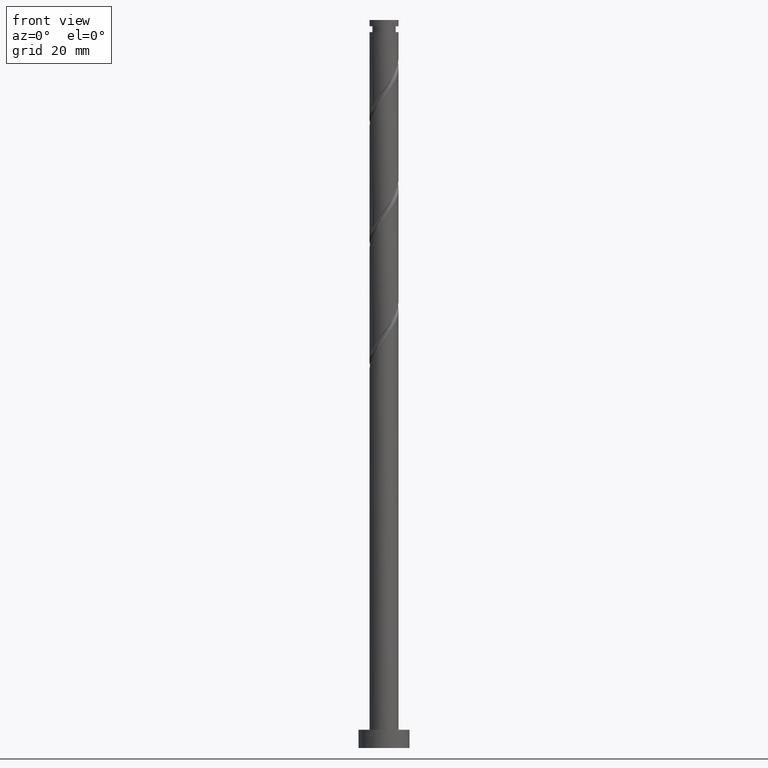
[diagram: clean part render]
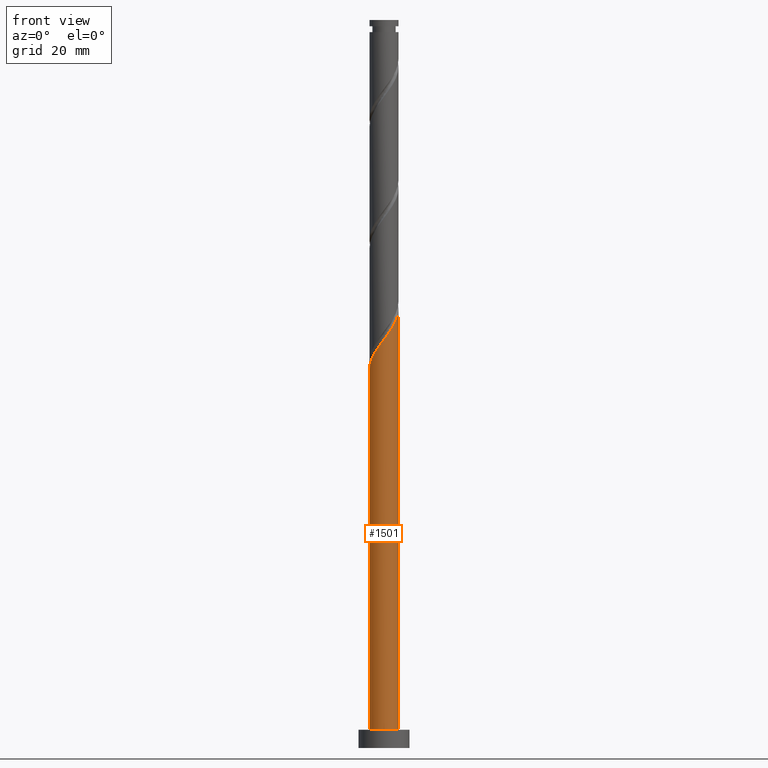
[diagram: same view with one face highlighted and labeled with its STEP entity id]
A machine part, front view. The second image highlights one B-rep face of the part: STEP entity #1501.
In plain terms, the highlighted cylindrical surface (edge-blend (fillet) strip) has radius 4 mm, axis along (-0, -0, -1).
Its self-contained STEP definition (entity closure, byte-faithful):
#24 = DIRECTION ( 'NONE',  ( -0.000000000000000000, -0.000000000000000000, -1.000000000000000000 ) ) ;
#68 =( BOUNDED_CURVE ( )  B_SPLINE_CURVE ( 2, ( #1018, #1529, #1260, #1402, #878, #1268, #1007, #853, #610, #1395, #1666, #602, #1141, #1276, #1564, #1694, #207, #1134, #1419, #594, #326, #471, #80, #454, #1124, #1410, #335 ),
 .UNSPECIFIED., .F., .T. ) 
 B_SPLINE_CURVE_WITH_KNOTS ( ( 3, 2, 2, 2, 2, 2, 2, 2, 2, 2, 2, 2, 2, 3 ),
 ( 0.05453176698144659301, 0.06250000000000000000, 0.07291666666666662966, 0.08333333333333337034, 0.09375000000000000000, 0.1041666666666666297, 0.1145833333333333703, 0.1250000000000000000, 0.1354166666666666297, 0.1458333333333333703, 0.1562500000000000000, 0.1666666666666666297, 0.1770833333333333703, 0.1795317669814464612 ),
 .UNSPECIFIED. ) 
 CURVE ( )  GEOMETRIC_REPRESENTATION_ITEM ( )  RATIONAL_B_SPLINE_CURVE ( ( 0.9062941362546486079, 0.9031415850403534673, 0.9090909090909286006, 0.9013135103398470793, 0.9090909090909286006, 0.9013135103398470793, 0.9090909090909286006, 0.9013135103398470793, 0.9090909090909286006, 0.9013135103398470793, 0.9090909090909286006, 0.9013135103398470793, 0.9090909090909286006, 0.9013135103398470793, 0.9090909090909286006, 0.9013135103398470793, 0.9090909090909286006, 0.9013135103398470793, 0.9090909090909286006, 0.9013135103398470793, 0.9090909090909286006, 0.9013135103398470793, 0.9090909090909286006, 0.9013135103398470793, 0.9090909090909286006, 0.9072628343904222126, 0.9062941362546487190 ) ) 
 REPRESENTATION_ITEM ( '' )  );
#80 = CARTESIAN_POINT ( 'NONE',  ( 3.792814557677653742, -1.270652482415440376, 118.9064362942840631 ) ) ;
#131 = CIRCLE ( 'NONE', #298, 4.000000000000000000 ) ;
#192 = EDGE_LOOP ( 'NONE', ( #521, #718, #1384, #1270 ) ) ;
#207 = CARTESIAN_POINT ( 'NONE',  ( 1.783437906669446793, -3.580411880364403387, 114.7397696276173917 ) ) ;
#253 = EDGE_CURVE ( 'NONE', #1356, #337, #1515, .T. ) ;
#282 = CARTESIAN_POINT ( 'NONE',  ( 4.000000000000007994, 1.046764911053401024E-16, 120.6206474168517673 ) ) ;
#291 = CARTESIAN_POINT ( 'NONE',  ( -4.000000000000000000, 0.000000000000000000, 5.000000000000000000 ) ) ;
#298 = AXIS2_PLACEMENT_3D ( 'NONE', #1196, #630, #1157 ) ;
#326 = CARTESIAN_POINT ( 'NONE',  ( 3.334708473430082698, -2.209008691072460895, 117.5175474053951774 ) ) ;
#335 = CARTESIAN_POINT ( 'NONE',  ( 4.000000000000007994, 1.046764911053401024E-16, 120.6206474168517673 ) ) ;
#337 = VERTEX_POINT ( 'NONE', #1238 ) ;
#429 = VECTOR ( 'NONE', #24, 1000.000000000000000 ) ;
#454 = CARTESIAN_POINT ( 'NONE',  ( 3.960099130553271340, -0.7713189730113434450, 119.6008807387284918 ) ) ;
#471 = CARTESIAN_POINT ( 'NONE',  ( 3.625529984802036143, -1.769985991819536864, 118.2119918498395919 ) ) ;
#481 = CARTESIAN_POINT ( 'NONE',  ( -4.000000000000007994, -2.706634984295222451E-15, 103.9539807501851101 ) ) ;
#521 = ORIENTED_EDGE ( 'NONE', *, *, #253, .F. ) ;
#576 = CARTESIAN_POINT ( 'NONE',  ( 4.000000000000000000, 4.898587196589412829E-16, 200.0000000000000000 ) ) ;
#594 = CARTESIAN_POINT ( 'NONE',  ( 3.043886962058129697, -2.648031390325381373, 116.8231029609506777 ) ) ;
#602 = CARTESIAN_POINT ( 'NONE',  ( -0.7713189730113416687, -3.960099130553272673, 111.2675474053951490 ) ) ;
#610 = CARTESIAN_POINT ( 'NONE',  ( -2.209008691072459118, -3.334708473430083586, 109.1842140720618488 ) ) ;
#626 = AXIS2_PLACEMENT_3D ( 'NONE', #1655, #1627, #1348 ) ;
#630 = DIRECTION ( 'NONE',  ( 0.000000000000000000, 0.000000000000000000, 1.000000000000000000 ) ) ;
#718 = ORIENTED_EDGE ( 'NONE', *, *, #1049, .F. ) ;
#808 = CYLINDRICAL_SURFACE ( 'NONE', #626, 4.000000000000000000 ) ;
#853 = CARTESIAN_POINT ( 'NONE',  ( -2.648031390325381373, -3.043886962058129697, 108.4897696276173633 ) ) ;
#878 = CARTESIAN_POINT ( 'NONE',  ( -3.580411880364402499, -1.783437906669447903, 106.4064362942840631 ) ) ;
#993 = CARTESIAN_POINT ( 'NONE',  ( -4.000000000000000000, 0.000000000000000000, 200.0000000000000000 ) ) ;
#1007 = CARTESIAN_POINT ( 'NONE',  ( -2.996824607992357059, -2.649347517584567324, 107.7953251831729489 ) ) ;
#1018 = CARTESIAN_POINT ( 'NONE',  ( -4.000000000000007994, -2.706634984295222451E-15, 103.9539807501851101 ) ) ;
#1049 = EDGE_CURVE ( 'NONE', #1060, #1356, #68, .T. ) ;
#1060 = VERTEX_POINT ( 'NONE', #481 ) ;
#1103 = VECTOR ( 'NONE', #1557, 1000.000000000000000 ) ;
#1124 = CARTESIAN_POINT ( 'NONE',  ( 3.992446597741906356, -0.2457034069343211891, 120.2953251831729489 ) ) ;
#1126 = EDGE_CURVE ( 'NONE', #1060, #1499, #1285, .T. ) ;
#1134 = CARTESIAN_POINT ( 'NONE',  ( 2.254808073111004063, -3.345617825659333633, 115.4342140720618204 ) ) ;
#1141 = CARTESIAN_POINT ( 'NONE',  ( -0.2457034069343189131, -3.992446597741906356, 111.9619918498396061 ) ) ;
#1157 = DIRECTION ( 'NONE',  ( 1.000000000000000000, 0.000000000000000000, 0.000000000000000000 ) ) ;
#1196 = CARTESIAN_POINT ( 'NONE',  ( 0.000000000000000000, 0.000000000000000000, 5.000000000000000000 ) ) ;
#1205 = EDGE_CURVE ( 'NONE', #1499, #337, #131, .T. ) ;
#1238 = CARTESIAN_POINT ( 'NONE',  ( 4.000000000000000000, 4.898587196589412829E-16, 5.000000000000000000 ) ) ;
#1260 = CARTESIAN_POINT ( 'NONE',  ( -3.920000000000007034, -0.7959899496852975709, 105.0175474053951632 ) ) ;
#1268 = CARTESIAN_POINT ( 'NONE',  ( -3.345617825659332301, -2.254808073111004951, 107.1008807387284918 ) ) ;
#1270 = ORIENTED_EDGE ( 'NONE', *, *, #1205, .T. ) ;
#1276 = CARTESIAN_POINT ( 'NONE',  ( 0.2799121591427036204, -4.024794064930541815, 112.6564362942840205 ) ) ;
#1285 = LINE ( 'NONE', #993, #1103 ) ;
#1348 = DIRECTION ( 'NONE',  ( -1.000000000000000000, 0.000000000000000000, 0.000000000000000000 ) ) ;
#1356 = VERTEX_POINT ( 'NONE', #282 ) ;
#1384 = ORIENTED_EDGE ( 'NONE', *, *, #1126, .T. ) ;
#1395 = CARTESIAN_POINT ( 'NONE',  ( -1.769985991819536864, -3.625529984802036587, 109.8786585165062490 ) ) ;
#1402 = CARTESIAN_POINT ( 'NONE',  ( -3.815205935069472254, -1.312067740227889745, 105.7119918498395919 ) ) ;
#1410 = CARTESIAN_POINT ( 'NONE',  ( 4.000000000000007994, -0.1229678066306897910, 120.4574837288236324 ) ) ;
#1419 = CARTESIAN_POINT ( 'NONE',  ( 2.649347517584566880, -2.996824607992357503, 116.1286585165062775 ) ) ;
#1499 = VERTEX_POINT ( 'NONE', #291 ) ;
#1500 = FACE_OUTER_BOUND ( 'NONE', #192, .T. ) ;
#1501 = ADVANCED_FACE ( 'NONE', ( #1500 ), #808, .T. ) ;
#1515 = LINE ( 'NONE', #576, #429 ) ;
#1529 = CARTESIAN_POINT ( 'NONE',  ( -4.000000000000004441, -0.4020151261036990498, 104.4874071193743674 ) ) ;
#1557 = DIRECTION ( 'NONE',  ( -0.000000000000000000, -0.000000000000000000, -1.000000000000000000 ) ) ;
#1564 = CARTESIAN_POINT ( 'NONE',  ( 0.7959899496852973488, -3.920000000000007034, 113.3508807387284918 ) ) ;
#1627 = DIRECTION ( 'NONE',  ( -0.000000000000000000, -0.000000000000000000, -1.000000000000000000 ) ) ;
#1655 = CARTESIAN_POINT ( 'NONE',  ( 0.000000000000000000, 0.000000000000000000, 200.0000000000000000 ) ) ;
#1666 = CARTESIAN_POINT ( 'NONE',  ( -1.270652482415439932, -3.792814557677653742, 110.5731029609507203 ) ) ;
#1694 = CARTESIAN_POINT ( 'NONE',  ( 1.312067740227889745, -3.815205935069472254, 114.0453251831729347 ) ) ;